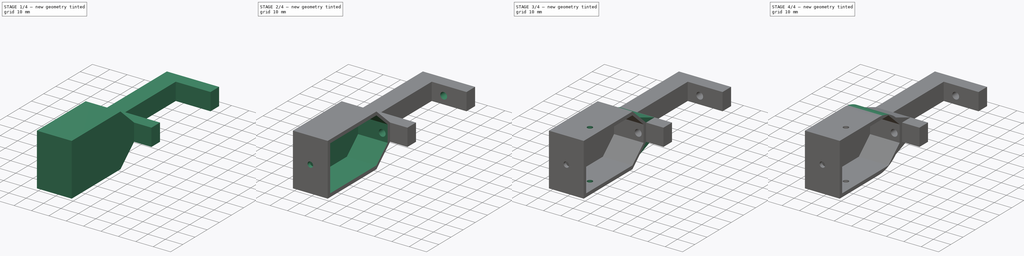
[diagram: build sequence overview — one tinted view per stage of 4, left to right]
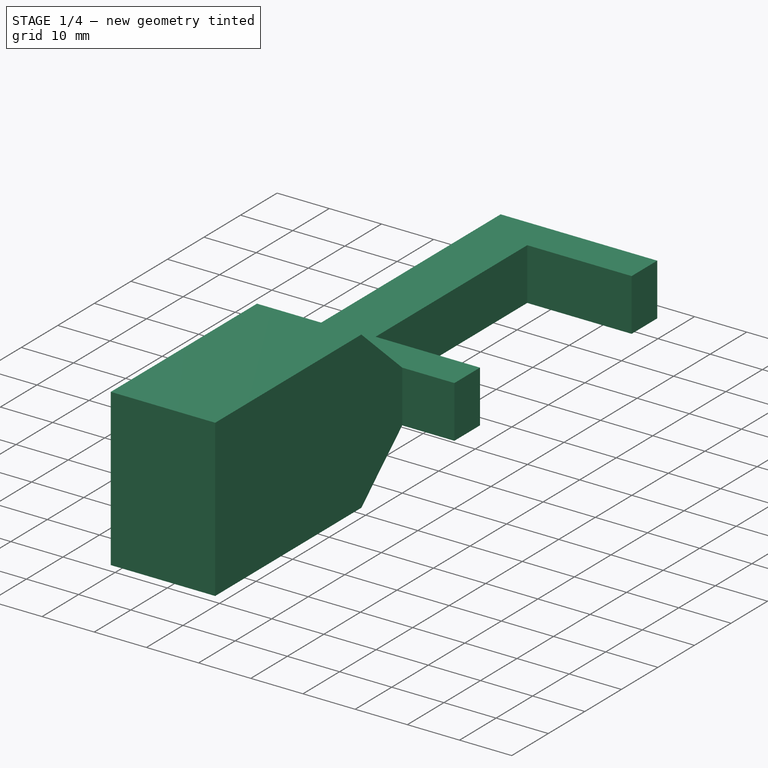
[diagram: stage 1 of 4 — iso view after this stage's code; geometry added in this stage tinted green]
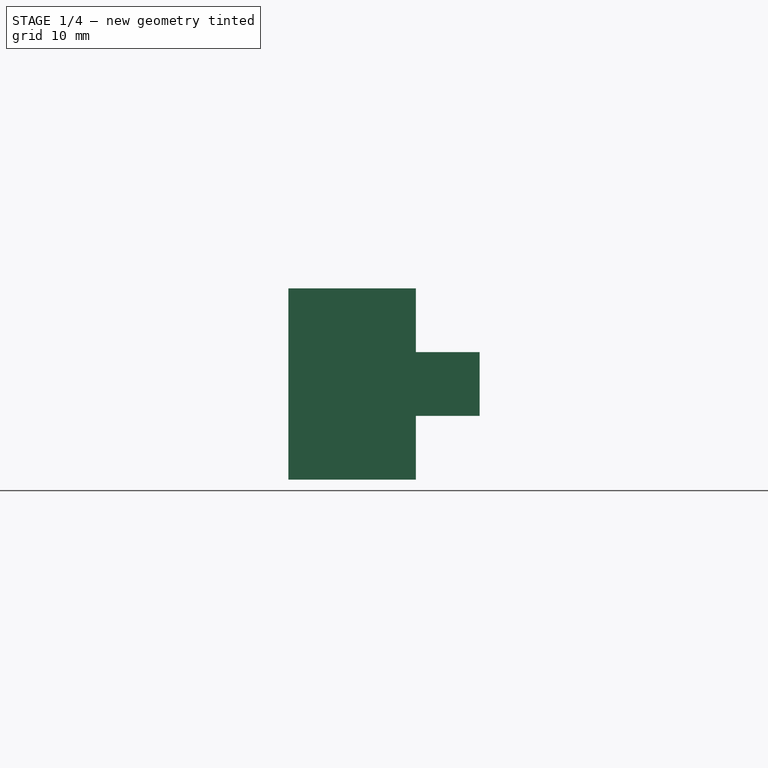
[diagram: stage 1 of 4 — front view after this stage's code; geometry added in this stage tinted green]
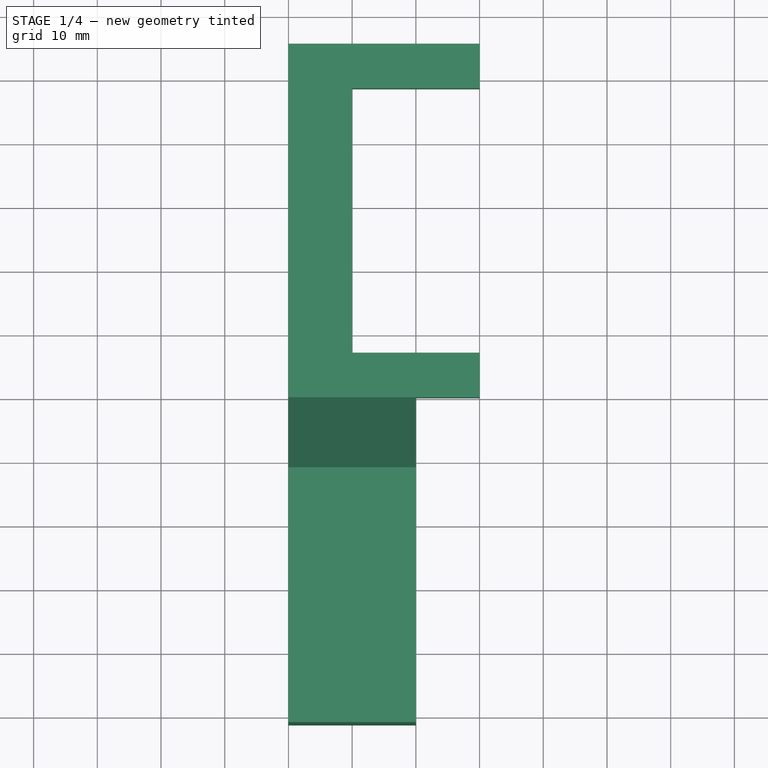
[diagram: stage 1 of 4 — top view after this stage's code; geometry added in this stage tinted green]
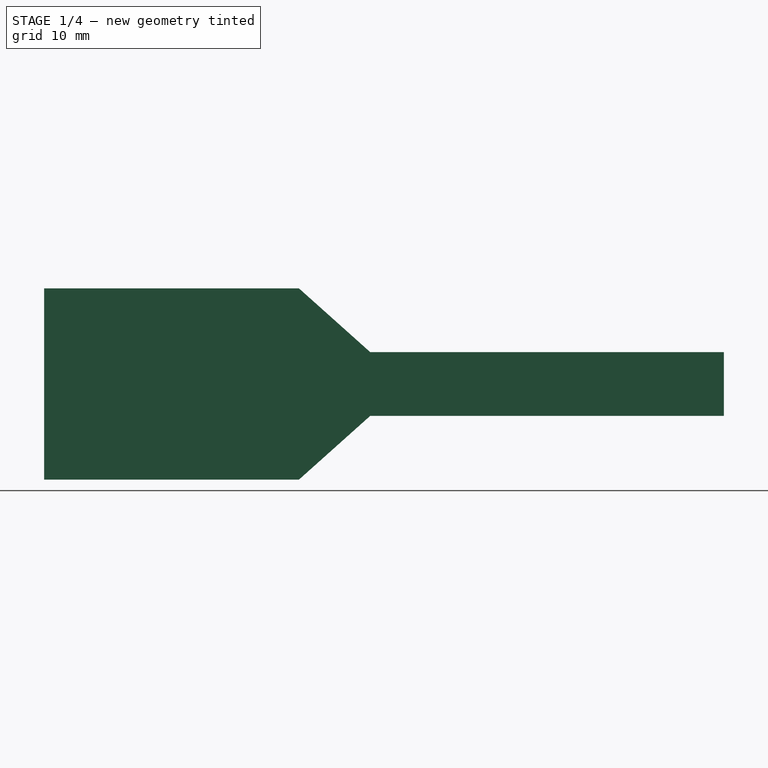
[diagram: stage 1 of 4 — right view after this stage's code; geometry added in this stage tinted green]
FCSTD DOCUMENT  (FreeCAD 0.15R4671 (Git))
Label: antebrazo
License: All rights reserved
LicenseURL: http://en.wikipedia.org/wiki/All_rights_reserved
objects: Sketcher::SketchObject×6, PartDesign::Pocket×4, PartDesign::Pad×2, PartDesign::Chamfer×2, PartDesign::Fillet×2
note: 22 computed .brp shape members not serialized (recipe doc carries the construction recipe); baked Part::Feature solids carry a one-line shape summary decoded from their .brp

FEATURE [Sketcher::SketchObject] Sketch
  sketch-geometry (8):
    g0: LineSegment StartX=30 StartY=55.5 StartZ=0 EndX=30 EndY=48.5 EndZ=0
    g1: LineSegment StartX=30 StartY=48.5 StartZ=0 EndX=10 EndY=48.5 EndZ=0
    g2: LineSegment StartX=10 StartY=48.5 StartZ=0 EndX=10 EndY=7 EndZ=0
    g3: LineSegment StartX=10 StartY=7 StartZ=0 EndX=30 EndY=7 EndZ=0
    g4: LineSegment StartX=30 StartY=7 StartZ=0 EndX=30 EndY=0 EndZ=0
    g5: LineSegment StartX=30 StartY=0 StartZ=0 EndX=0 EndY=0 EndZ=0
    g6: LineSegment StartX=0 StartY=0 StartZ=0 EndX=0 EndY=55.5 EndZ=0
    g7: LineSegment StartX=0 StartY=55.5 StartZ=0 EndX=30 EndY=55.5 EndZ=0
  constraints (23):
    c: Vertical(g0)
    c: Coincident(g0,g1)
    c: Horizontal(g1)
    c: Coincident(g1,g2)
    c: Vertical(g2)
    c: Coincident(g2,g3)
    c: Horizontal(g3)
    c: Coincident(g3,g4)
    c: Vertical(g4)
    c: Coincident(g4,g5)
    c: Horizontal(g5)
    c: Coincident(g5,g6)
    c: Vertical(g6)
    c: Coincident(g6,g7)
    c: Coincident(g7,g0)
    c: Horizontal(g7)
    c: DistanceY(g2) = -41.5
    c: DistanceY(g0) = -7
    c: Equal(g0,g4)
    c: Equal(g1,g3)
    c: DistanceX(g1) = -20
    c: DistanceX(g7) = 30
    c: Coincident(g5,g-1)
FEATURE [PartDesign::Pad] Pad
  Length = 10
  Length2 = 100
  Sketch = -> Sketch
  Type = 0
FEATURE [Sketcher::SketchObject] Sketch001
  ExternalGeometry = -> [Pad]
  Placement = pos=(0,0,0) rot=(0.57735,-0.57735,-0.57735;2.0944rad)
  Support = -> Pad [Face7]
  sketch-geometry (7):
    g0: LineSegment StartX=0 StartY=10 StartZ=0 EndX=0 EndY=0 EndZ=0
    g1: LineSegment StartX=0 StartY=0 StartZ=0 EndX=11.1803 EndY=-10 EndZ=0
    g2: LineSegment StartX=11.1803 StartY=-10 StartZ=0 EndX=51.1803 EndY=-10 EndZ=0
    g3: LineSegment StartX=51.1803 StartY=-10 StartZ=0 EndX=51.1803 EndY=20 EndZ=0
    g4: LineSegment StartX=51.1803 StartY=20 StartZ=0 EndX=11.1803 EndY=20 EndZ=0
    g5: LineSegment StartX=11.1803 StartY=20 StartZ=0 EndX=0 EndY=10 EndZ=0
    g6: LineSegment [constr] StartX=11.1803 StartY=20 StartZ=0 EndX=11.1803 EndY=-10 EndZ=0
  constraints (19):
    c: PointOnObject(g0,g-1)
    c: Vertical(g0)
    c: Coincident(g0,g1)
    c: Coincident(g1,g2)
    c: Horizontal(g2)
    c: Coincident(g2,g3)
    c: Vertical(g3)
    c: Coincident(g3,g4)
    c: Horizontal(g4)
    c: Coincident(g4,g5)
    c: Coincident(g5,g0)
    c: Equal(g5,g1)
    c: Coincident(g0,g-3)
    c: DistanceX(g2) = 40
    c: DistanceY(g3) = 30
    c: Vertical(g6)
    c: Coincident(g6,g4)
    c: Coincident(g6,g1)
    c: Distance(g-1,g1) = 15
FEATURE [PartDesign::Pad] Pad001
  Length = 20
  Length2 = 100
  Reversed = true
  Sketch = -> Sketch001
  Type = 0
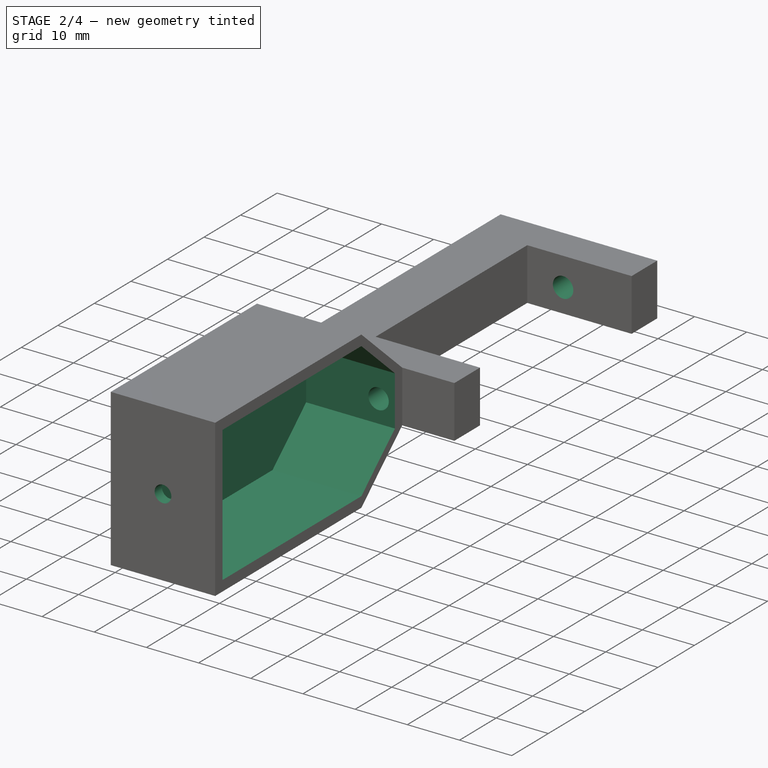
[diagram: stage 2 of 4 — iso view after this stage's code; geometry added in this stage tinted green]
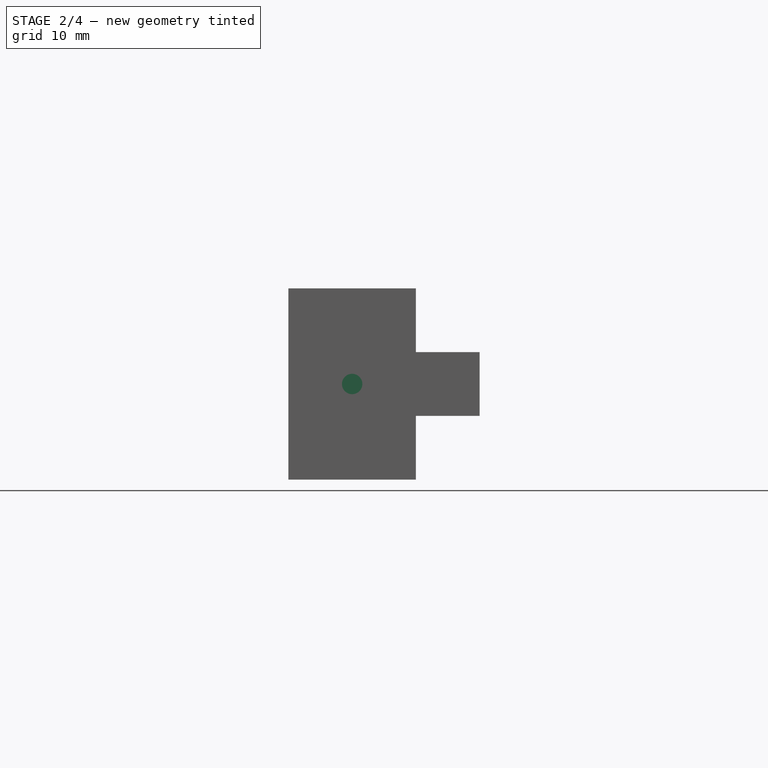
[diagram: stage 2 of 4 — front view after this stage's code; geometry added in this stage tinted green]
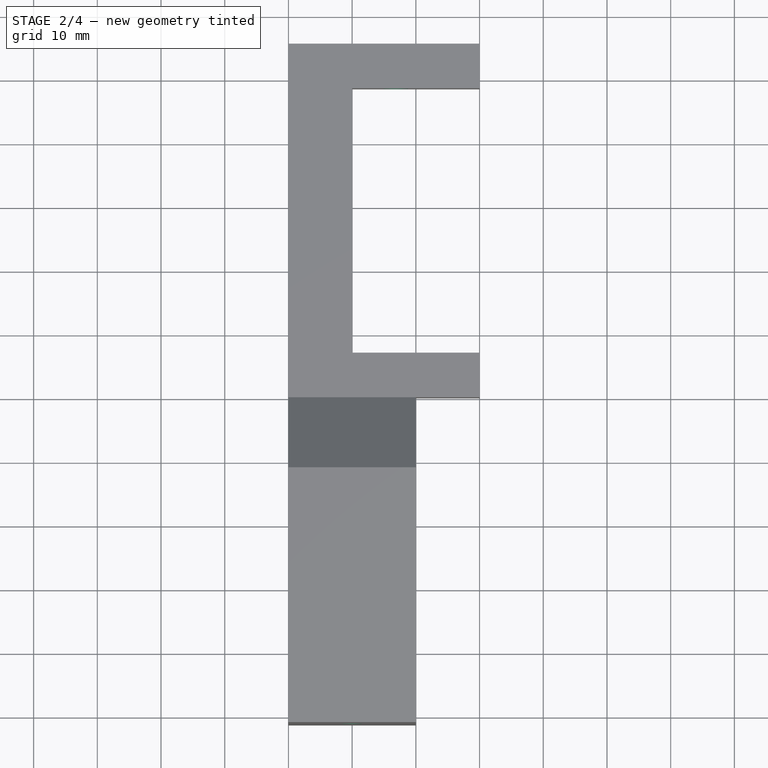
[diagram: stage 2 of 4 — top view after this stage's code; geometry added in this stage tinted green]
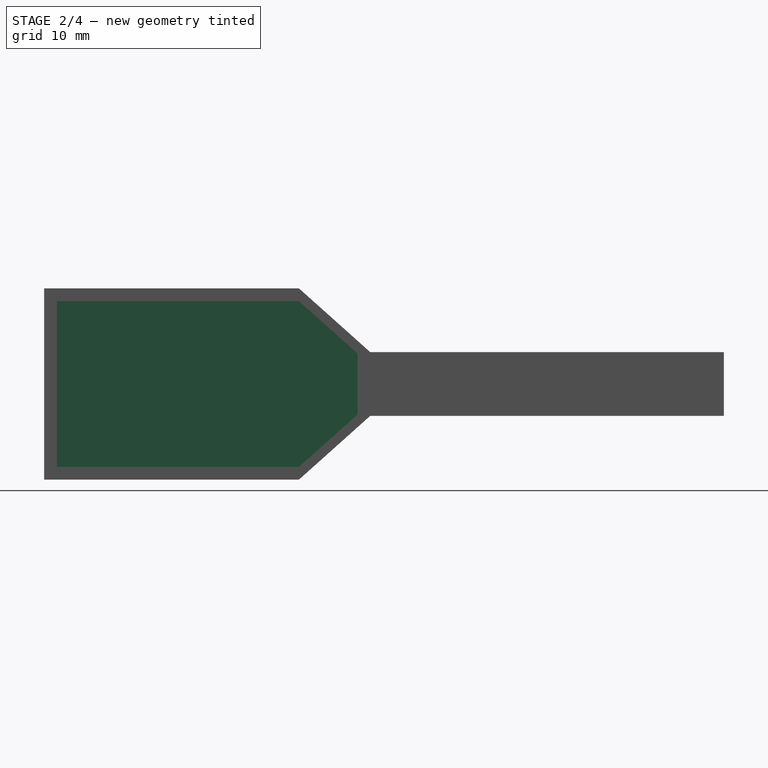
[diagram: stage 2 of 4 — right view after this stage's code; geometry added in this stage tinted green]
FEATURE [Sketcher::SketchObject] Sketch002
  ExternalGeometry = -> [Pad001]
  Placement = pos=(0,-51.1803,0) rot=(1,0,0;1.5708rad)
  Support = -> Pad001 [Face17]
  sketch-geometry (3):
    g0: LineSegment [constr] StartX=0 StartY=20 StartZ=0 EndX=20 EndY=-10 EndZ=0
    g1: LineSegment [constr] StartX=20 StartY=20 StartZ=0 EndX=0 EndY=-10 EndZ=0
    g2: Circle CenterX=10 CenterY=5 CenterZ=0 NormalX=0 NormalY=0 NormalZ=1 Radius=1.6
  constraints (7):
    c: Coincident(g0,g-3)
    c: Coincident(g0,g-5)
    c: Coincident(g1,g-4)
    c: Coincident(g1,g-5)
    c: PointOnObject(g2,g1)
    c: PointOnObject(g2,g0)
    c: Radius(g2) = 1.6
FEATURE [PartDesign::Pocket] Pocket
  Length = 17
  Sketch = -> Sketch002
  Type = 0
FEATURE [Sketcher::SketchObject] Sketch003
  ExternalGeometry = -> [Pocket]
  Placement = pos=(20,0,0) rot=(0.57735,0.57735,0.57735;2.0944rad)
  Support = -> Pocket [Face14]
  sketch-geometry (7):
    g0: LineSegment StartX=-49.1803 StartY=18 StartZ=0 EndX=-49.1803 EndY=-8 EndZ=0
    g1: LineSegment StartX=-49.1803 StartY=-8 StartZ=0 EndX=-11.1804 EndY=-8 EndZ=0
    g2: LineSegment StartX=-11.1804 StartY=-8 StartZ=0 EndX=-2 EndY=0.211161 EndZ=0
    g3: LineSegment StartX=-2 StartY=0.211161 StartZ=0 EndX=-2 EndY=9.78884 EndZ=0
    g4: LineSegment StartX=-2 StartY=9.78884 StartZ=0 EndX=-11.1804 EndY=18 EndZ=0
    g5: LineSegment StartX=-11.1804 StartY=18 StartZ=0 EndX=-49.1803 EndY=18 EndZ=0
    g6: LineSegment [constr] StartX=-11.1804 StartY=18 StartZ=0 EndX=-11.1804 EndY=-8 EndZ=0
  constraints (20):
    c: Vertical(g0)
    c: Coincident(g0,g1)
    c: Horizontal(g1)
    c: Coincident(g1,g2)
    c: Coincident(g2,g3)
    c: Vertical(g3)
    c: Coincident(g3,g4)
    c: Coincident(g4,g5)
    c: Coincident(g5,g0)
    c: Horizontal(g5)
    c: Parallel(g2,g-6)
    c: Parallel(g4,g-7)
    c: Distance(g1,g-6) = 2
    c: Vertical(g6)
    c: Coincident(g6,g4)
    c: Coincident(g6,g1)
    c: Distance(g0,g-4) = 2
    c: Distance(g0,g-3) = 2
    c: Distance(g0,g-5) = 2
    c: Distance(g3,g-8) = 2
FEATURE [PartDesign::Pocket] Pocket001
  Length = 17
  Sketch = -> Sketch003
  Type = 0
FEATURE [Sketcher::SketchObject] Sketch004
  Placement = pos=(0,-2,0) rot=(1,0,0;1.5708rad)
  Support = -> Pocket001 [Face20]
  sketch-geometry (1):
    g0: Circle CenterX=16.8702 CenterY=4.53877 CenterZ=0 NormalX=0 NormalY=0 NormalZ=1 Radius=1.95601
FEATURE [PartDesign::Pocket] Pocket002
  Length = 5
  Sketch = -> Sketch004
  Type = 1
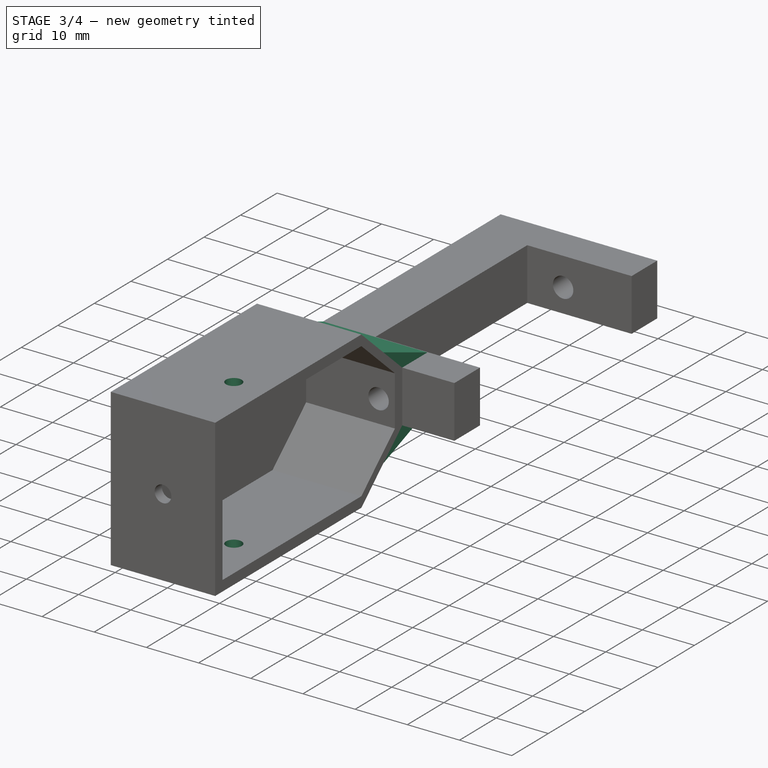
[diagram: stage 3 of 4 — iso view after this stage's code; geometry added in this stage tinted green]
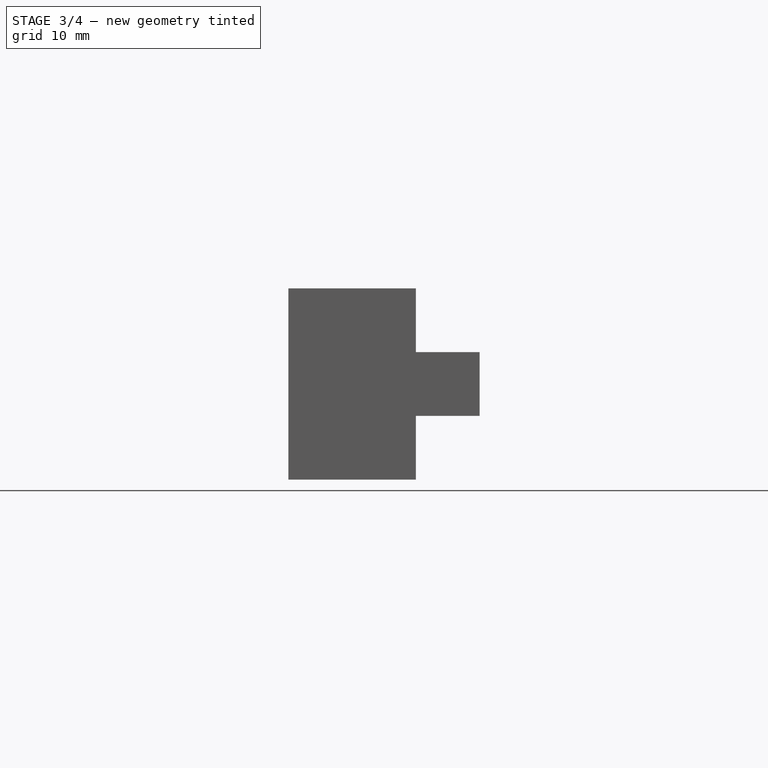
[diagram: stage 3 of 4 — front view after this stage's code; geometry added in this stage tinted green]
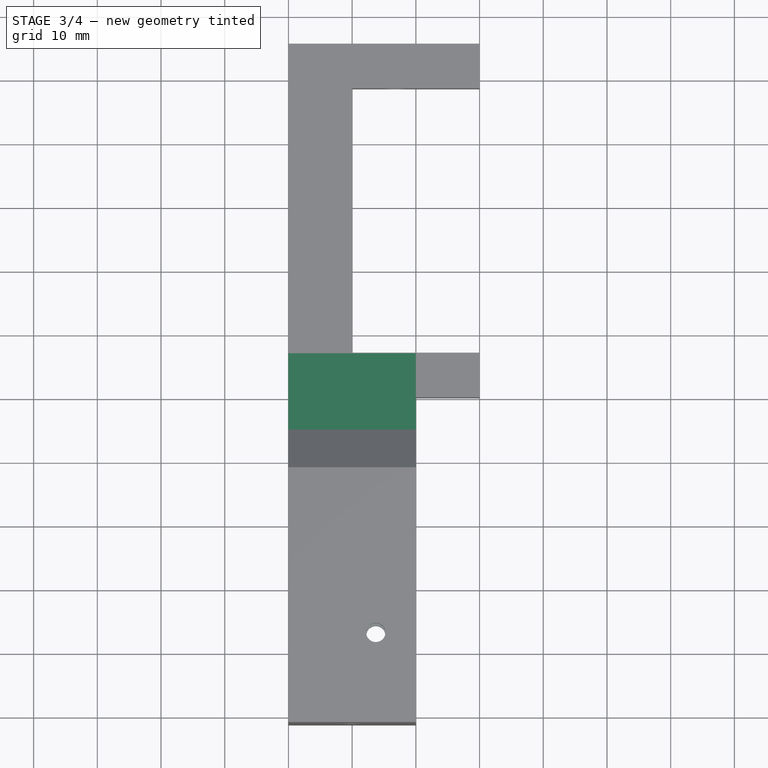
[diagram: stage 3 of 4 — top view after this stage's code; geometry added in this stage tinted green]
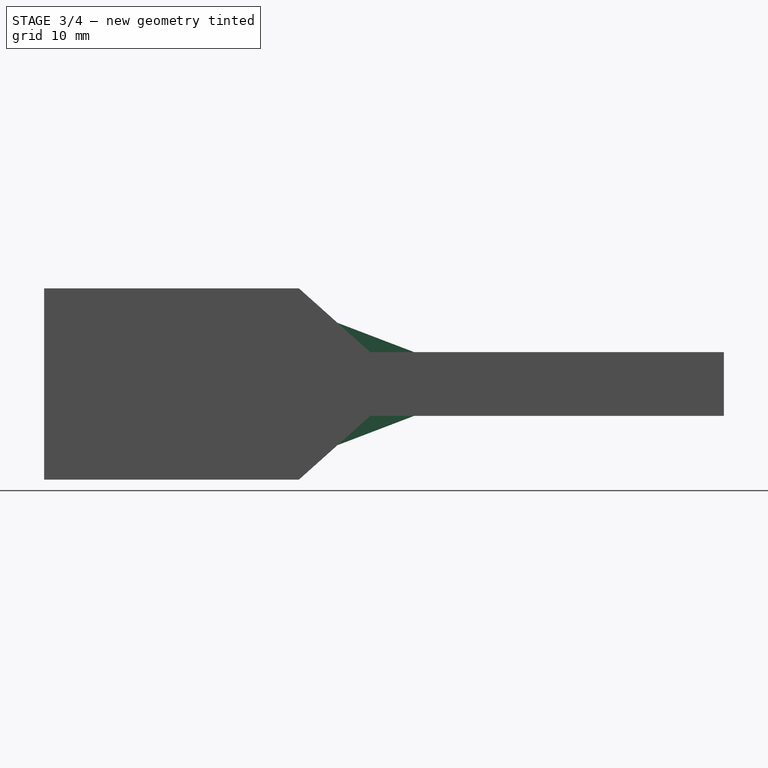
[diagram: stage 3 of 4 — right view after this stage's code; geometry added in this stage tinted green]
FEATURE [Sketcher::SketchObject] Sketch005
  Placement = pos=(0,0,-10) rot=(1,0,0;3.14159rad)
  Support = -> Pocket002 [Face16]
  sketch-geometry (1):
    g0: Circle CenterX=13.7184 CenterY=37.1075 CenterZ=0 NormalX=0 NormalY=0 NormalZ=1 Radius=1.5
  constraints (1):
    c: Radius(g0) = 1.5
FEATURE [PartDesign::Pocket] Pocket003
  Length = 5
  Sketch = -> Sketch005
  Type = 1
FEATURE [PartDesign::Chamfer] Chamfer
  Base = -> Pocket003 [Edge15]
  Size = 6.9
FEATURE [PartDesign::Chamfer] Chamfer001
  Base = -> Chamfer [Edge51]
  Size = 6.9
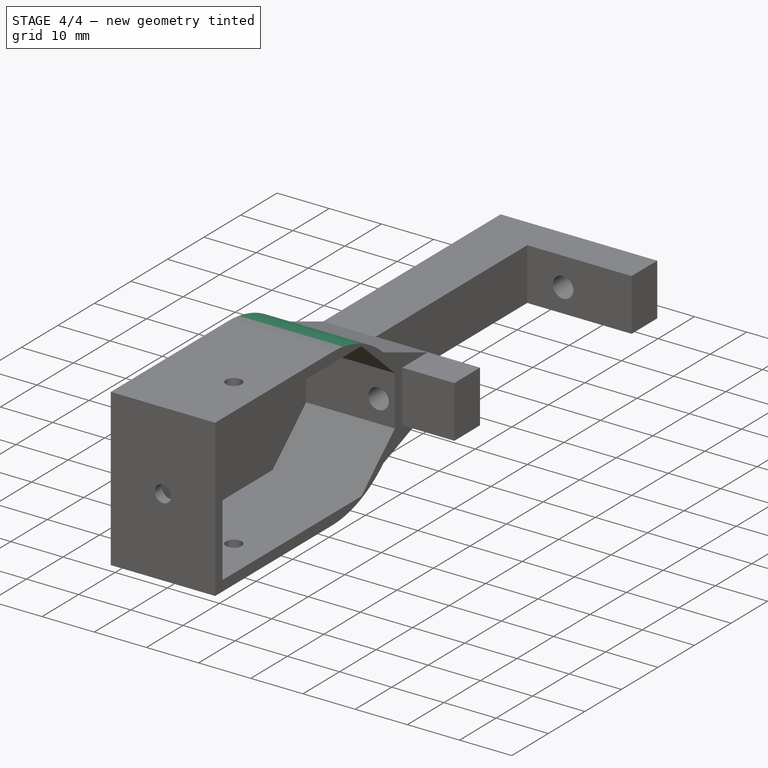
[diagram: stage 4 of 4 — iso view after this stage's code; geometry added in this stage tinted green]
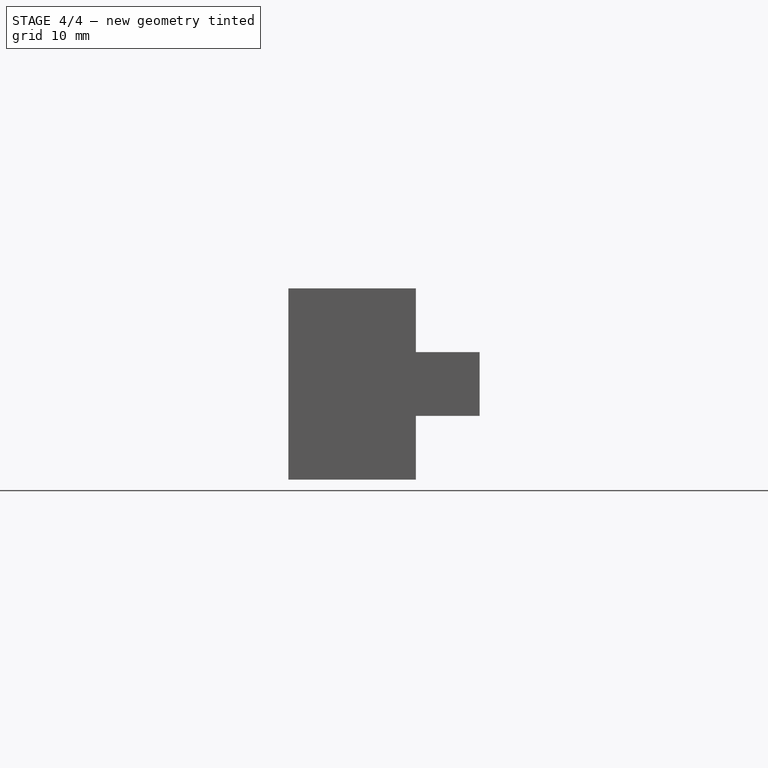
[diagram: stage 4 of 4 — front view after this stage's code; geometry added in this stage tinted green]
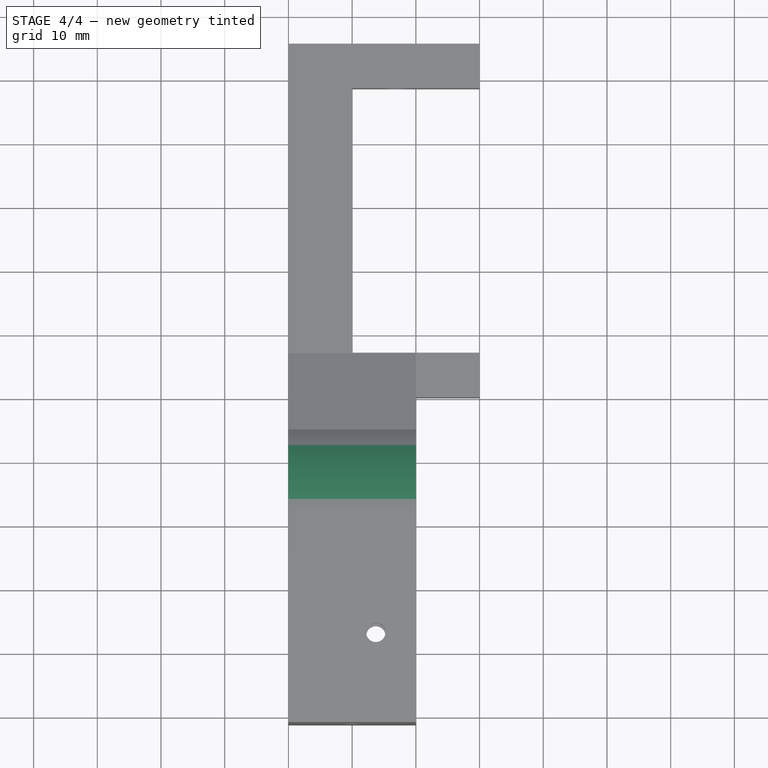
[diagram: stage 4 of 4 — top view after this stage's code; geometry added in this stage tinted green]
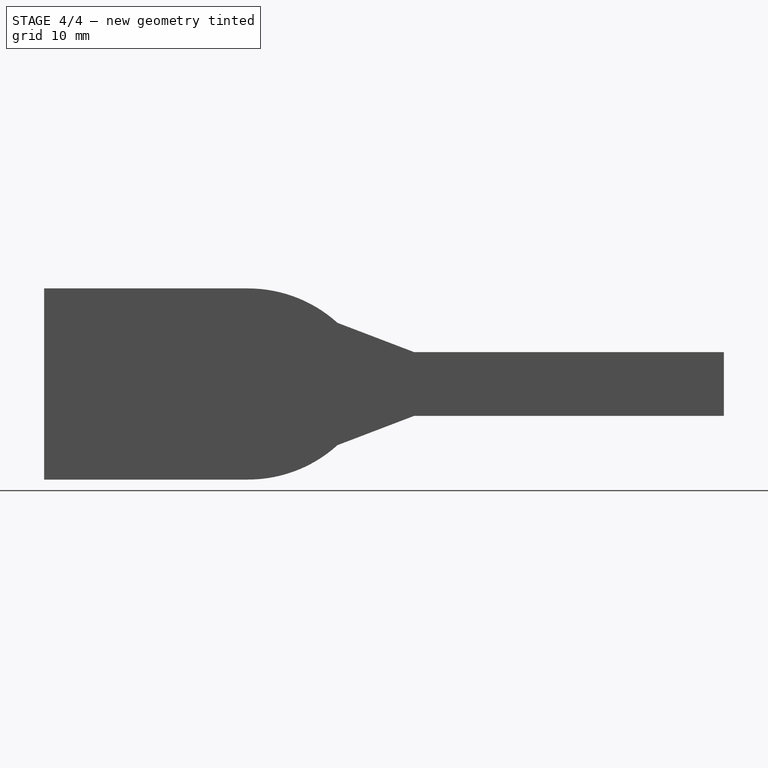
[diagram: stage 4 of 4 — right view after this stage's code; geometry added in this stage tinted green]
FEATURE [PartDesign::Fillet] Fillet
  Base = -> Chamfer001 [Edge40]
  Radius = 20.9
FEATURE [PartDesign::Fillet] Fillet001
  Base = -> Fillet [Edge32]
  Radius = 20.9
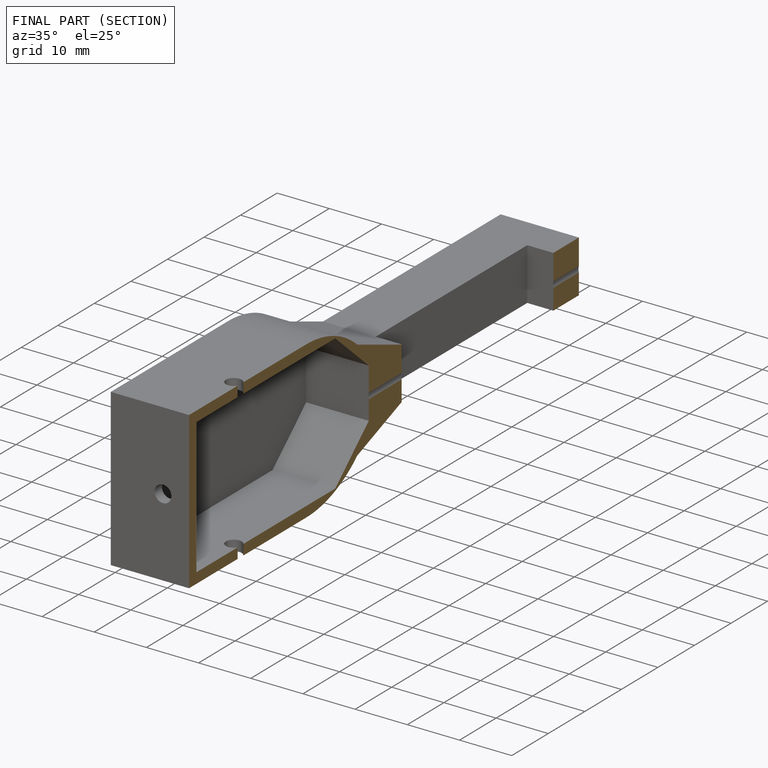
[diagram: finished part — half-section view (interior)]
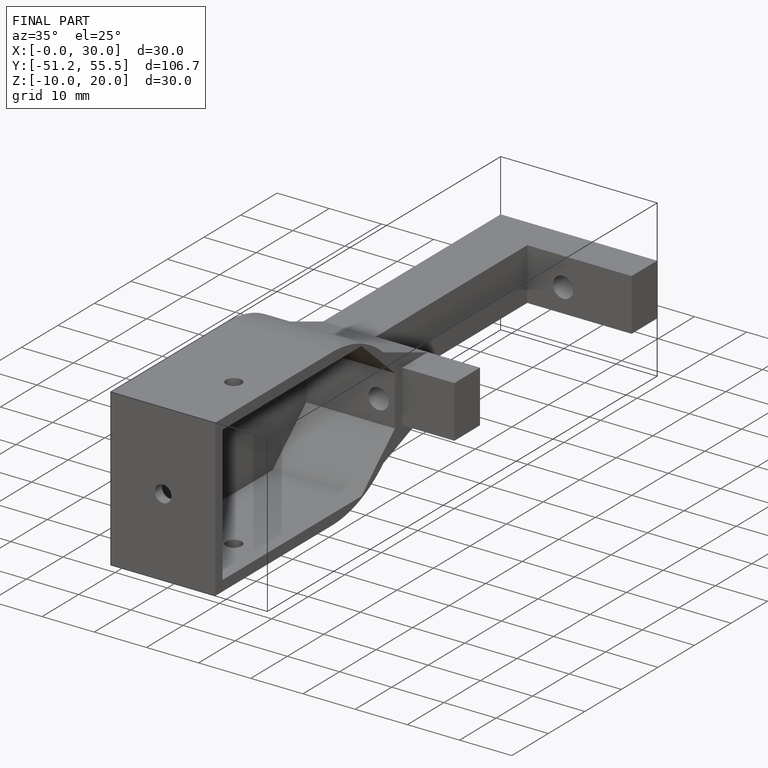
[diagram: finished part — iso view with bounding-box wireframe]
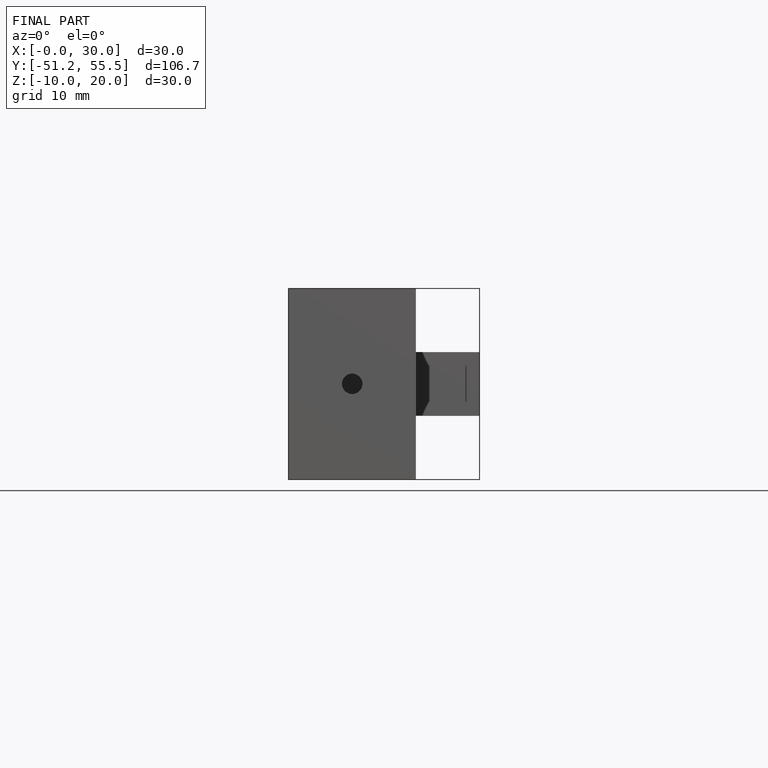
[diagram: finished part — front view with bounding-box wireframe]
